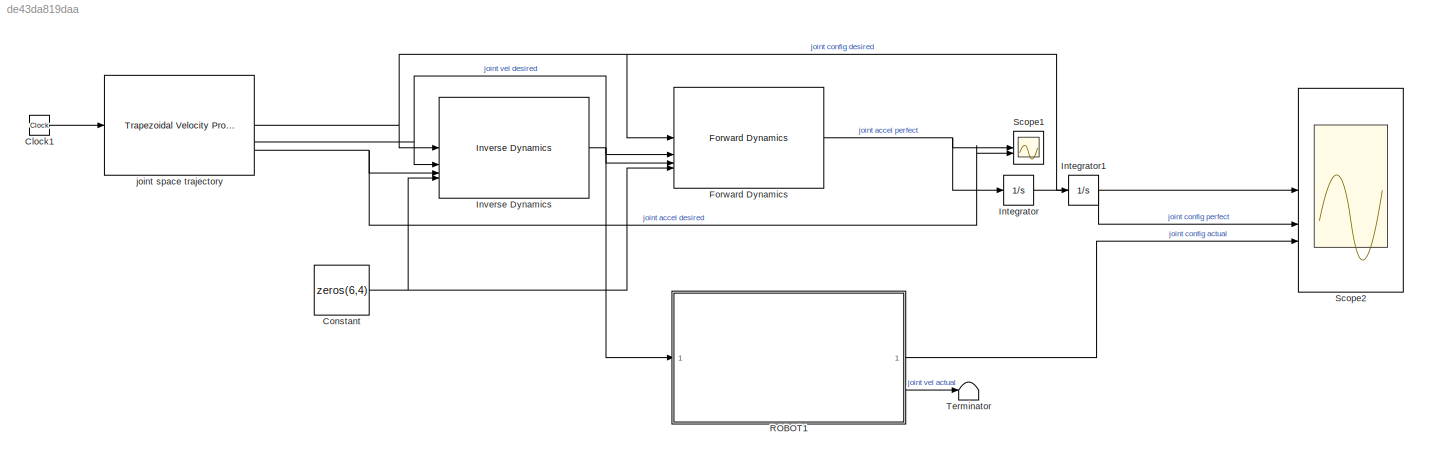
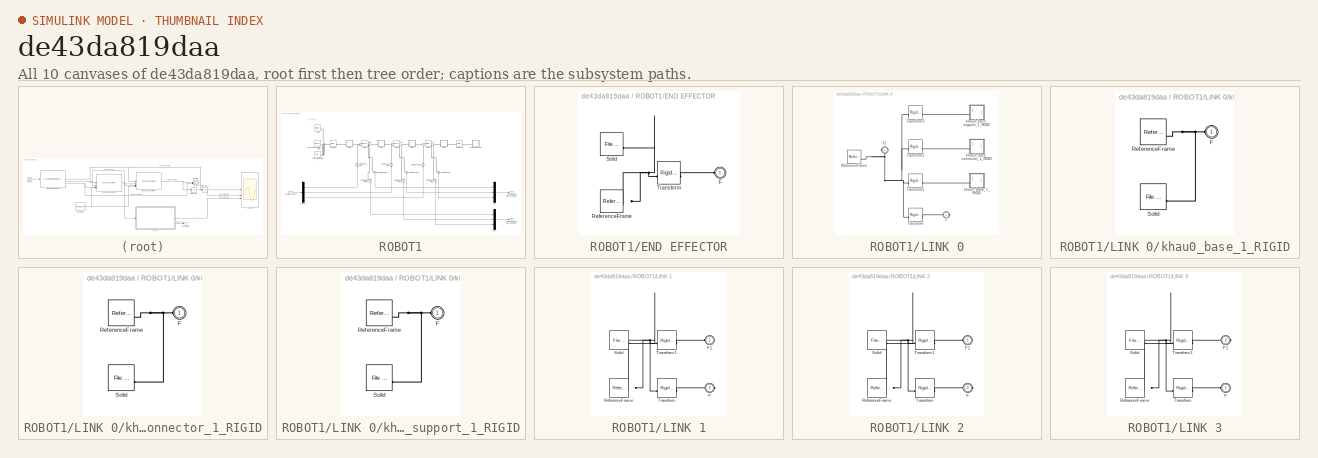
[diagram: thumbnail index - all 10 canvases of the model, root first then tree order]
MODEL slx_de43da819daa
KIND model
CONFIG AbsTol = auto
CONFIG EnableMultiTasking = off
CONFIG FixedStep = 0.001
CONFIG MaxStep = auto
CONFIG MinStep = auto
CONFIG RelTol = 1e-3
CONFIG SampleTimeConstraint = Unconstrained
CONFIG SolverName = ode4
CONFIG StartTime = 0.0
CONFIG StopTime = 7.0
BLOCK [Clock] Clock1
BLOCK [Constant] Constant
  Value = zeros(6,4)
BLOCK [Reference] Forward Dynamics  REF=robotmaniplib/Forward Dynamics
  SourceBlock = robotmaniplib/Forward Dynamics
  SourceType = Forward Dynamics
BLOCK [Integrator] Integrator
BLOCK [Integrator] Integrator1
BLOCK [Reference] Inverse Dynamics  REF=robotmaniplib/Inverse Dynamics
  SourceBlock = robotmaniplib/Inverse Dynamics
  SourceType = Inverse Dynamics
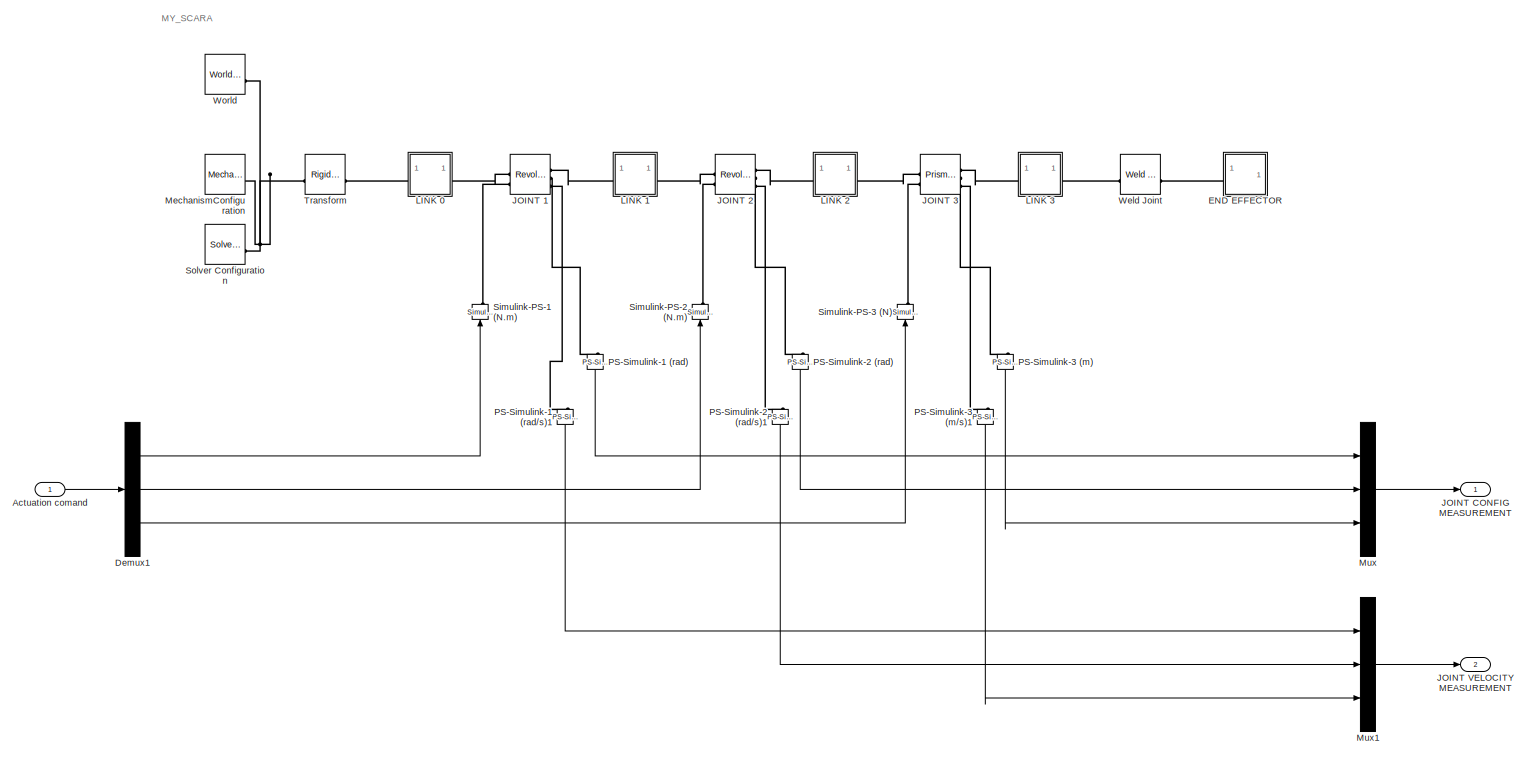
[diagram: ROBOT1 - part 1/1, most of the canvas]
BLOCK [SubSystem] ROBOT1
BLOCK [Inport] ROBOT1/Actuation comand
BLOCK [Demux] ROBOT1/Demux1
  Outputs = 3
BLOCK [SubSystem] ROBOT1/END EFFECTOR
BLOCK [PMIOPort] ROBOT1/END EFFECTOR/F
  Side = Left
BLOCK [Reference] ROBOT1/END EFFECTOR/ReferenceFrame  REF=sm_lib/Frames and
Transforms/Reference
Frame
  SourceBlock = sm_lib/Frames and\nTransforms/Reference\nFrame
  SourceType = Reference\nFrame
BLOCK [Reference] ROBOT1/END EFFECTOR/Solid  REF=sm_lib/Body Elements/File Solid
  SourceBlock = sm_lib/Body Elements/File Solid
  SourceType = File Solid
BLOCK [Reference] ROBOT1/END EFFECTOR/Transform  REF=sm_lib/Frames and
Transforms/Rigid
Transform
  SourceBlock = sm_lib/Frames and\nTransforms/Rigid\nTransform
  SourceType = Rigid\nTransform
BLOCK [Reference] ROBOT1/JOINT 1  REF=sm_lib/Joints/Revolute Joint
  SourceBlock = sm_lib/Joints/Revolute Joint
  SourceType = Revolute Joint
BLOCK [Reference] ROBOT1/JOINT 2  REF=sm_lib/Joints/Revolute Joint
  SourceBlock = sm_lib/Joints/Revolute Joint
  SourceType = Revolute Joint
BLOCK [Reference] ROBOT1/JOINT 3  REF=sm_lib/Joints/Prismatic
Joint
  SourceBlock = sm_lib/Joints/Prismatic\nJoint
  SourceType = Prismatic\nJoint
BLOCK [Outport] ROBOT1/JOINT CONFIG MEASUREMENT
BLOCK [Outport] ROBOT1/JOINT VELOCITY MEASUREMENT
  Port = 2
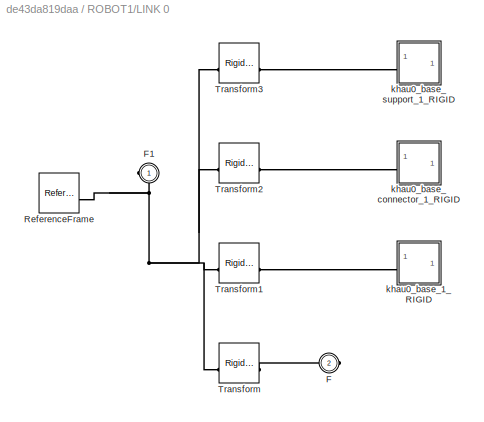
BLOCK [SubSystem] ROBOT1/LINK 0
BLOCK [PMIOPort] ROBOT1/LINK 0/F
  Port = 2
  Side = Right
BLOCK [PMIOPort] ROBOT1/LINK 0/F1
  Side = Left
BLOCK [Reference] ROBOT1/LINK 0/ReferenceFrame  REF=sm_lib/Frames and
Transforms/Reference
Frame
  SourceBlock = sm_lib/Frames and\nTransforms/Reference\nFrame
  SourceType = Reference\nFrame
BLOCK [Reference] ROBOT1/LINK 0/Transform  REF=sm_lib/Frames and
Transforms/Rigid
Transform
  SourceBlock = sm_lib/Frames and\nTransforms/Rigid\nTransform
  SourceType = Rigid\nTransform
BLOCK [Reference] ROBOT1/LINK 0/Transform1  REF=sm_lib/Frames and
Transforms/Rigid
Transform
  SourceBlock = sm_lib/Frames and\nTransforms/Rigid\nTransform
  SourceType = Rigid\nTransform
BLOCK [Reference] ROBOT1/LINK 0/Transform2  REF=sm_lib/Frames and
Transforms/Rigid
Transform
  SourceBlock = sm_lib/Frames and\nTransforms/Rigid\nTransform
  SourceType = Rigid\nTransform
BLOCK [Reference] ROBOT1/LINK 0/Transform3  REF=sm_lib/Frames and
Transforms/Rigid
Transform
  SourceBlock = sm_lib/Frames and\nTransforms/Rigid\nTransform
  SourceType = Rigid\nTransform
BLOCK [SubSystem] ROBOT1/LINK 0/khau0_base_1_RIGID
BLOCK [PMIOPort] ROBOT1/LINK 0/khau0_base_1_RIGID/F
  Side = Left
BLOCK [Reference] ROBOT1/LINK 0/khau0_base_1_RIGID/ReferenceFrame  REF=sm_lib/Frames and
Transforms/Reference
Frame
  SourceBlock = sm_lib/Frames and\nTransforms/Reference\nFrame
  SourceType = Reference\nFrame
BLOCK [Reference] ROBOT1/LINK 0/khau0_base_1_RIGID/Solid  REF=sm_lib/Body Elements/File Solid
  SourceBlock = sm_lib/Body Elements/File Solid
  SourceType = File Solid
BLOCK [SubSystem] ROBOT1/LINK 0/khau0_base_connector_1_RIGID
BLOCK [PMIOPort] ROBOT1/LINK 0/khau0_base_connector_1_RIGID/F
  Side = Left
BLOCK [Reference] ROBOT1/LINK 0/khau0_base_connector_1_RIGID/ReferenceFrame  REF=sm_lib/Frames and
Transforms/Reference
Frame
  SourceBlock = sm_lib/Frames and\nTransforms/Reference\nFrame
  SourceType = Reference\nFrame
BLOCK [Reference] ROBOT1/LINK 0/khau0_base_connector_1_RIGID/Solid  REF=sm_lib/Body Elements/File Solid
  SourceBlock = sm_lib/Body Elements/File Solid
  SourceType = File Solid
BLOCK [SubSystem] ROBOT1/LINK 0/khau0_base_support_1_RIGID
BLOCK [PMIOPort] ROBOT1/LINK 0/khau0_base_support_1_RIGID/F
  Side = Left
BLOCK [Reference] ROBOT1/LINK 0/khau0_base_support_1_RIGID/ReferenceFrame  REF=sm_lib/Frames and
Transforms/Reference
Frame
  SourceBlock = sm_lib/Frames and\nTransforms/Reference\nFrame
  SourceType = Reference\nFrame
BLOCK [Reference] ROBOT1/LINK 0/khau0_base_support_1_RIGID/Solid  REF=sm_lib/Body Elements/File Solid
  SourceBlock = sm_lib/Body Elements/File Solid
  SourceType = File Solid
BLOCK [SubSystem] ROBOT1/LINK 1
BLOCK [PMIOPort] ROBOT1/LINK 1/F
  Port = 2
  Side = Right
BLOCK [PMIOPort] ROBOT1/LINK 1/F1
  Side = Left
BLOCK [Reference] ROBOT1/LINK 1/ReferenceFrame  REF=sm_lib/Frames and
Transforms/Reference
Frame
  SourceBlock = sm_lib/Frames and\nTransforms/Reference\nFrame
  SourceType = Reference\nFrame
BLOCK [Reference] ROBOT1/LINK 1/Solid  REF=sm_lib/Body Elements/File Solid
  SourceBlock = sm_lib/Body Elements/File Solid
  SourceType = File Solid
BLOCK [Reference] ROBOT1/LINK 1/Transform  REF=sm_lib/Frames and
Transforms/Rigid
Transform
  SourceBlock = sm_lib/Frames and\nTransforms/Rigid\nTransform
  SourceType = Rigid\nTransform
BLOCK [Reference] ROBOT1/LINK 1/Transform1  REF=sm_lib/Frames and
Transforms/Rigid
Transform
  SourceBlock = sm_lib/Frames and\nTransforms/Rigid\nTransform
  SourceType = Rigid\nTransform
BLOCK [SubSystem] ROBOT1/LINK 2
BLOCK [PMIOPort] ROBOT1/LINK 2/F
  Port = 2
  Side = Right
BLOCK [PMIOPort] ROBOT1/LINK 2/F1
  Side = Left
BLOCK [Reference] ROBOT1/LINK 2/ReferenceFrame  REF=sm_lib/Frames and
Transforms/Reference
Frame
  SourceBlock = sm_lib/Frames and\nTransforms/Reference\nFrame
  SourceType = Reference\nFrame
BLOCK [Reference] ROBOT1/LINK 2/Solid  REF=sm_lib/Body Elements/File Solid
  SourceBlock = sm_lib/Body Elements/File Solid
  SourceType = File Solid
BLOCK [Reference] ROBOT1/LINK 2/Transform  REF=sm_lib/Frames and
Transforms/Rigid
Transform
  SourceBlock = sm_lib/Frames and\nTransforms/Rigid\nTransform
  SourceType = Rigid\nTransform
BLOCK [Reference] ROBOT1/LINK 2/Transform1  REF=sm_lib/Frames and
Transforms/Rigid
Transform
  SourceBlock = sm_lib/Frames and\nTransforms/Rigid\nTransform
  SourceType = Rigid\nTransform
BLOCK [SubSystem] ROBOT1/LINK 3
BLOCK [PMIOPort] ROBOT1/LINK 3/F
  Side = Left
BLOCK [PMIOPort] ROBOT1/LINK 3/F1
  Port = 2
  Side = Right
BLOCK [Reference] ROBOT1/LINK 3/ReferenceFrame  REF=sm_lib/Frames and
Transforms/Reference
Frame
  SourceBlock = sm_lib/Frames and\nTransforms/Reference\nFrame
  SourceType = Reference\nFrame
BLOCK [Reference] ROBOT1/LINK 3/Solid  REF=sm_lib/Body Elements/File Solid
  SourceBlock = sm_lib/Body Elements/File Solid
  SourceType = File Solid
BLOCK [Reference] ROBOT1/LINK 3/Transform  REF=sm_lib/Frames and
Transforms/Rigid
Transform
  SourceBlock = sm_lib/Frames and\nTransforms/Rigid\nTransform
  SourceType = Rigid\nTransform
BLOCK [Reference] ROBOT1/LINK 3/Transform1  REF=sm_lib/Frames and
Transforms/Rigid
Transform
  SourceBlock = sm_lib/Frames and\nTransforms/Rigid\nTransform
  SourceType = Rigid\nTransform
BLOCK [Reference] ROBOT1/MechanismConfiguration  REF=sm_lib/Utilities/Mechanism
Configuration
  SourceBlock = sm_lib/Utilities/Mechanism\nConfiguration
  SourceType = Mechanism\nConfiguration
BLOCK [Mux] ROBOT1/Mux
  DisplayOption = bar
  Inputs = 3
BLOCK [Mux] ROBOT1/Mux1
  DisplayOption = bar
  Inputs = 3
BLOCK [Reference] ROBOT1/PS-Simulink-1 (rad)  REF=nesl_utility/PS-Simulink
Converter
  NameLocation = left
  SourceBlock = nesl_utility/PS-Simulink\nConverter
  SourceType = PS-Simulink\nConverter
BLOCK [Reference] ROBOT1/PS-Simulink-1 (rad//s)1  REF=nesl_utility/PS-Simulink
Converter
  NameLocation = left
  SourceBlock = nesl_utility/PS-Simulink\nConverter
  SourceType = PS-Simulink\nConverter
BLOCK [Reference] ROBOT1/PS-Simulink-2 (rad)  REF=nesl_utility/PS-Simulink
Converter
  NameLocation = left
  SourceBlock = nesl_utility/PS-Simulink\nConverter
  SourceType = PS-Simulink\nConverter
BLOCK [Reference] ROBOT1/PS-Simulink-2 (rad//s)1  REF=nesl_utility/PS-Simulink
Converter
  NameLocation = left
  SourceBlock = nesl_utility/PS-Simulink\nConverter
  SourceType = PS-Simulink\nConverter
BLOCK [Reference] ROBOT1/PS-Simulink-3 (m)  REF=nesl_utility/PS-Simulink
Converter
  NameLocation = left
  SourceBlock = nesl_utility/PS-Simulink\nConverter
  SourceType = PS-Simulink\nConverter
BLOCK [Reference] ROBOT1/PS-Simulink-3 (m//s)1  REF=nesl_utility/PS-Simulink
Converter
  NameLocation = left
  SourceBlock = nesl_utility/PS-Simulink\nConverter
  SourceType = PS-Simulink\nConverter
BLOCK [Reference] ROBOT1/Simulink-PS-1 (N.m)  REF=nesl_utility/Simulink-PS
Converter
  NameLocation = right
  SourceBlock = nesl_utility/Simulink-PS\nConverter
  SourceType = Simulink-PS\nConverter
BLOCK [Reference] ROBOT1/Simulink-PS-2 (N.m)  REF=nesl_utility/Simulink-PS
Converter
  NameLocation = right
  SourceBlock = nesl_utility/Simulink-PS\nConverter
  SourceType = Simulink-PS\nConverter
BLOCK [Reference] ROBOT1/Simulink-PS-3 (N)  REF=nesl_utility/Simulink-PS
Converter
  NameLocation = right
  SourceBlock = nesl_utility/Simulink-PS\nConverter
  SourceType = Simulink-PS\nConverter
BLOCK [Reference] ROBOT1/Solver Configuration  REF=nesl_utility/Solver
Configuration
  SourceBlock = nesl_utility/Solver\nConfiguration
  SourceType = Solver\nConfiguration
BLOCK [Reference] ROBOT1/Transform  REF=sm_lib/Frames and
Transforms/Rigid
Transform
  SourceBlock = sm_lib/Frames and\nTransforms/Rigid\nTransform
  SourceType = Rigid\nTransform
BLOCK [Reference] ROBOT1/Weld Joint  REF=sm_lib/Joints/Weld Joint
  SourceBlock = sm_lib/Joints/Weld Joint
  SourceType = Weld Joint
BLOCK [Reference] ROBOT1/World  REF=sm_lib/Frames and
Transforms/World Frame
  SourceBlock = sm_lib/Frames and\nTransforms/World Frame
  SourceType = World Frame
BLOCK [Scope] Scope1
  Floating = off
  NumInputPorts = 2
  ScopeSpecificationString = Simulink.scopes.TimeScopeBlockCfg('CurrentConfiguration', extmgr.ConfigurationSet(extmgr.Configuration('Core','General UI',true),extmgr.Configuration('Core','Source UI',true),extmgr.Configuration('Sources','WiredSimulink',true,'DataLoggingVariableName','ScopeData1'),extmgr.Configuration('Visuals','Time Domain',true,'SerializedDisplays',{struct('MinYLimReal','-35.34292','MaxYLimReal','35.34292','YL...<+2141ch>
BLOCK [Scope] Scope2
  Floating = off
  NumInputPorts = 3
  ScopeSpecificationString = Simulink.scopes.TimeScopeBlockCfg('CurrentConfiguration', extmgr.ConfigurationSet(extmgr.Configuration('Core','General UI',true),extmgr.Configuration('Core','Source UI',true),extmgr.Configuration('Sources','WiredSimulink',true,'DataLoggingVariableName','ScopeData2'),extmgr.Configuration('Visuals','Time Domain',true,'SerializedDisplays',{struct('MinYLimReal','-3.29431','MaxYLimReal','3.46884','YLab...<+2898ch>
BLOCK [Terminator] Terminator
BLOCK [Reference] joint space trajectory  REF=robotcorelib/Trapezoidal Velocity Profile Trajectory
  LibrarySourceBlock = robotutilslib/Trapezoidal Velocity Profile Trajectory
  SourceBlock = robotcorelib/Trapezoidal Velocity Profile Trajectory
  SourceType = robotics.slcore.internal.block.TrapVelTrajSys
ANNOTATION ROBOT1: MY_SCARA
LINE Clock1:1 -> joint space trajectory:1
NET Constant:1 -> Forward Dynamics:4, Inverse Dynamics:4
NET Forward Dynamics:1 -> Integrator:1, Scope1:1
LINE Integrator1:1 -> Scope2:2
LINE Integrator:1 -> Integrator1:1
NET Inverse Dynamics:1 -> Forward Dynamics:3, ROBOT1:1
LINE ROBOT1/Actuation comand:1 -> ROBOT1/Demux1:1
LINE ROBOT1/Demux1:1 -> ROBOT1/Simulink-PS-1 (N.m):1
LINE ROBOT1/Demux1:2 -> ROBOT1/Simulink-PS-2 (N.m):1
LINE ROBOT1/Demux1:3 -> ROBOT1/Simulink-PS-3 (N):1
LINE ROBOT1/Mux1:1 -> ROBOT1/JOINT VELOCITY MEASUREMENT:1
LINE ROBOT1/Mux:1 -> ROBOT1/JOINT CONFIG MEASUREMENT:1
LINE ROBOT1/PS-Simulink-1 (rad):1 -> ROBOT1/Mux:1
LINE ROBOT1/PS-Simulink-1 (rad//s)1:1 -> ROBOT1/Mux1:1
LINE ROBOT1/PS-Simulink-2 (rad):1 -> ROBOT1/Mux:2
LINE ROBOT1/PS-Simulink-2 (rad//s)1:1 -> ROBOT1/Mux1:2
LINE ROBOT1/PS-Simulink-3 (m):1 -> ROBOT1/Mux:3
LINE ROBOT1/PS-Simulink-3 (m//s)1:1 -> ROBOT1/Mux1:3
LINE ROBOT1:1 -> Scope2:3
LINE ROBOT1:2 -> Terminator:1
NET joint space trajectory:1 -> Forward Dynamics:1, Inverse Dynamics:1, Scope2:1
NET joint space trajectory:2 -> Forward Dynamics:2, Inverse Dynamics:2
NET joint space trajectory:3 -> Inverse Dynamics:3, Scope1:2
PLINE ROBOT1/END EFFECTOR/F:RConn1 -- ROBOT1/END EFFECTOR/Transform:RConn1
PNET net1: ROBOT1/END EFFECTOR/ReferenceFrame:RConn1 -- ROBOT1/END EFFECTOR/Solid:RConn1 -- ROBOT1/END EFFECTOR/Transform:LConn1
PLINE ROBOT1/END EFFECTOR:LConn1 -- ROBOT1/Weld Joint:RConn1
PLINE ROBOT1/JOINT 1:LConn1 -- ROBOT1/LINK 0:RConn1
PLINE ROBOT1/JOINT 1:LConn2 -- ROBOT1/Simulink-PS-1 (N.m):RConn1
PLINE ROBOT1/JOINT 1:RConn1 -- ROBOT1/LINK 1:LConn1
PLINE ROBOT1/JOINT 1:RConn2 -- ROBOT1/PS-Simulink-1 (rad):LConn1
PLINE ROBOT1/JOINT 1:RConn3 -- ROBOT1/PS-Simulink-1 (rad//s)1:LConn1
PLINE ROBOT1/JOINT 2:LConn1 -- ROBOT1/LINK 1:RConn1
PLINE ROBOT1/JOINT 2:LConn2 -- ROBOT1/Simulink-PS-2 (N.m):RConn1
PLINE ROBOT1/JOINT 2:RConn1 -- ROBOT1/LINK 2:LConn1
PLINE ROBOT1/JOINT 2:RConn2 -- ROBOT1/PS-Simulink-2 (rad):LConn1
PLINE ROBOT1/JOINT 2:RConn3 -- ROBOT1/PS-Simulink-2 (rad//s)1:LConn1
PLINE ROBOT1/JOINT 3:LConn1 -- ROBOT1/LINK 2:RConn1
PLINE ROBOT1/JOINT 3:LConn2 -- ROBOT1/Simulink-PS-3 (N):RConn1
PLINE ROBOT1/JOINT 3:RConn1 -- ROBOT1/LINK 3:LConn1
PLINE ROBOT1/JOINT 3:RConn2 -- ROBOT1/PS-Simulink-3 (m):LConn1
PLINE ROBOT1/JOINT 3:RConn3 -- ROBOT1/PS-Simulink-3 (m//s)1:LConn1
PNET net2: ROBOT1/LINK 0/F1:RConn1 -- ROBOT1/LINK 0/ReferenceFrame:RConn1 -- ROBOT1/LINK 0/Transform1:LConn1 -- ROBOT1/LINK 0/Transform2:LConn1 -- ROBOT1/LINK 0/Transform3:LConn1 -- ROBOT1/LINK 0/Transform:LConn1
PLINE ROBOT1/LINK 0/F:RConn1 -- ROBOT1/LINK 0/Transform:RConn1
PLINE ROBOT1/LINK 0/Transform1:RConn1 -- ROBOT1/LINK 0/khau0_base_1_RIGID:LConn1
PLINE ROBOT1/LINK 0/Transform2:RConn1 -- ROBOT1/LINK 0/khau0_base_connector_1_RIGID:LConn1
PLINE ROBOT1/LINK 0/Transform3:RConn1 -- ROBOT1/LINK 0/khau0_base_support_1_RIGID:LConn1
PNET net3: ROBOT1/LINK 0/khau0_base_1_RIGID/F:RConn1 -- ROBOT1/LINK 0/khau0_base_1_RIGID/ReferenceFrame:RConn1 -- ROBOT1/LINK 0/khau0_base_1_RIGID/Solid:RConn1
PNET net4: ROBOT1/LINK 0/khau0_base_connector_1_RIGID/F:RConn1 -- ROBOT1/LINK 0/khau0_base_connector_1_RIGID/ReferenceFrame:RConn1 -- ROBOT1/LINK 0/khau0_base_connector_1_RIGID/Solid:RConn1
PNET net5: ROBOT1/LINK 0/khau0_base_support_1_RIGID/F:RConn1 -- ROBOT1/LINK 0/khau0_base_support_1_RIGID/ReferenceFrame:RConn1 -- ROBOT1/LINK 0/khau0_base_support_1_RIGID/Solid:RConn1
PLINE ROBOT1/LINK 0:LConn1 -- ROBOT1/Transform:RConn1
PLINE ROBOT1/LINK 1/F1:RConn1 -- ROBOT1/LINK 1/Transform1:RConn1
PLINE ROBOT1/LINK 1/F:RConn1 -- ROBOT1/LINK 1/Transform:RConn1
PNET net6: ROBOT1/LINK 1/ReferenceFrame:RConn1 -- ROBOT1/LINK 1/Solid:RConn1 -- ROBOT1/LINK 1/Transform1:LConn1 -- ROBOT1/LINK 1/Transform:LConn1
PLINE ROBOT1/LINK 2/F1:RConn1 -- ROBOT1/LINK 2/Transform1:RConn1
PLINE ROBOT1/LINK 2/F:RConn1 -- ROBOT1/LINK 2/Transform:RConn1
PNET net7: ROBOT1/LINK 2/ReferenceFrame:RConn1 -- ROBOT1/LINK 2/Solid:RConn1 -- ROBOT1/LINK 2/Transform1:LConn1 -- ROBOT1/LINK 2/Transform:LConn1
PLINE ROBOT1/LINK 3/F1:RConn1 -- ROBOT1/LINK 3/Transform1:RConn1
PLINE ROBOT1/LINK 3/F:RConn1 -- ROBOT1/LINK 3/Transform:RConn1
PNET net8: ROBOT1/LINK 3/ReferenceFrame:RConn1 -- ROBOT1/LINK 3/Solid:RConn1 -- ROBOT1/LINK 3/Transform1:LConn1 -- ROBOT1/LINK 3/Transform:LConn1
PLINE ROBOT1/LINK 3:RConn1 -- ROBOT1/Weld Joint:LConn1
PNET net9: ROBOT1/MechanismConfiguration:RConn1 -- ROBOT1/Solver Configuration:RConn1 -- ROBOT1/Transform:LConn1 -- ROBOT1/World:RConn1
note: NET lines group one-source signal fan-out (src -> all destinations, sorted); 1:1 wires keep LINE; PNET lines group multi-terminal physical nets as a canonical sorted terminal list (undirected conserving connections); 2-terminal nets keep the pairwise PLINE form
